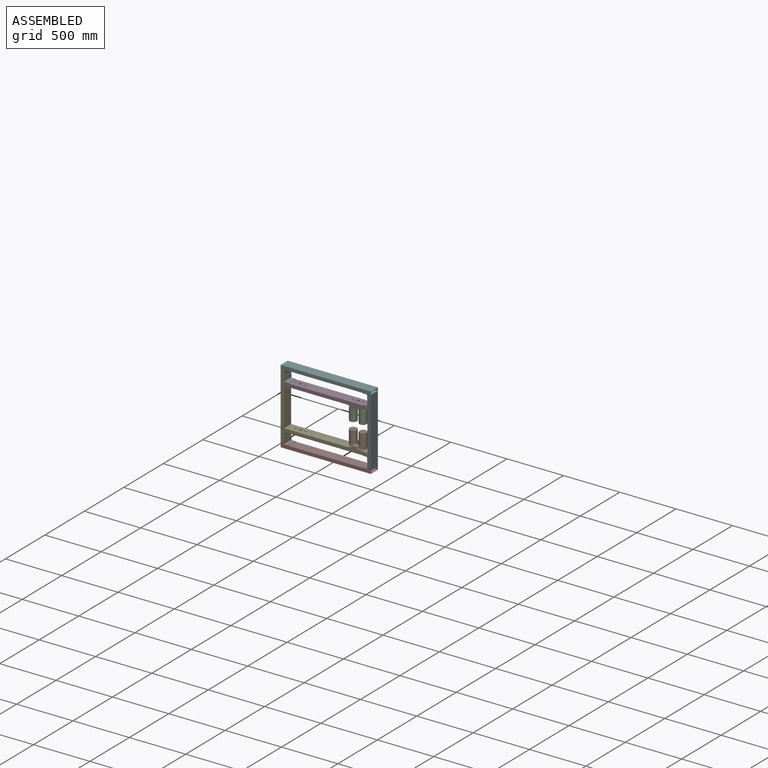
[diagram: assembled view]
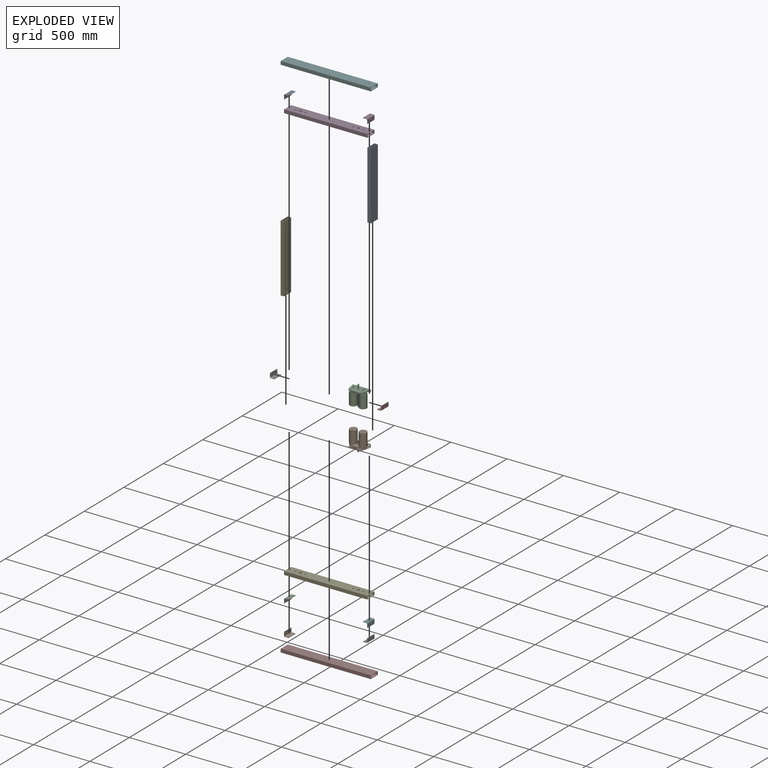
[diagram: exploded view]
GUIDED TOUR — MATED ASSEMBLY WITH SUBASSEMBLIES (Onshape document c86a4f6575f6017475b67a72, AutoMate assembly c86a4f6575f6017475b67a72_9b0eb808f1c5a23047f3c96d_129d4300e8e7a1c445e2efac_default)

This assembly has 30 component occurrences arranged in 16 top-level units: 14 individual components plus 2 subassemblies (S0, S1). The tour has two levels: first the top level, where each subassembly is treated as one rigid unit; then each subassembly is toured internally in its own section (nesting deeper than one subassembly level is flattened into its subassembly's section).

Components are labeled P0..P29 across the whole record; subassembly units are labeled S0..S1. A mate is a constraint between two units; its type names the relative motion it leaves free:
  FASTENED — locks the two components together rigidly (no relative motion).
Axis/direction vectors are unit vectors and 'through' points are millimeter coordinates, both in the assembly's world frame.

TOP-LEVEL MATES (between units; each subassembly's internal mates are listed in its own section)
  1. FASTENED "Fastened 5": P25 <-> P24, direction (0.000, 0.000, 1.000) through (-180.54, -116.82, -42.28) mm
  2. FASTENED "Fastened 12": P10 <-> P3, direction (0.000, 0.000, -1.000) through (-180.54, -116.82, 357.72) mm
  3. FASTENED "Fastened 6": P19 <-> P24, direction (0.000, 0.000, 1.000) through (-856.54, -116.82, -42.28) mm
  4. FASTENED "Fastened 4": P28 <-> P8, direction (0.000, 0.000, 1.000) through (-180.54, -116.82, -142.28) mm
  5. FASTENED "Fastened 9": P5 <-> P11, direction (0.000, 0.000, -1.000) through (-856.54, -116.82, 457.72) mm
  6. FASTENED "Fastened 7": P18 <-> P28, direction (0.000, 0.000, -1.000) through (-856.54, -116.82, -142.28) mm
  7. FASTENED "Fastened 11": S1 <-> P3, direction (0.000, 0.000, 1.000) through (-233.22, -117.31, 327.72) mm
  8. FASTENED "Fastened 13": P27 <-> P3, direction (0.000, 0.000, -1.000) through (-856.54, -116.82, 357.72) mm
  9. FASTENED "Fastened 3": P4 <-> P5, direction (0.000, 0.000, 1.000) through (-918.54, -108.82, 457.72) mm
  10. FASTENED "Fastened 8": P5 <-> P23, direction (0.000, 0.000, -1.000) through (-180.54, -116.82, 457.72) mm
  11. FASTENED "Fastened 10": P24 <-> S0, direction (0.000, 0.000, 1.000) through (-233.22, -117.31, -12.28) mm
  12. FASTENED "Fastened 1": P0 <-> P28, direction (0.000, 0.000, -1.000) through (-118.54, -108.82, -142.28) mm
  13. FASTENED "Fastened 2": P28 <-> P4, direction (0.000, 0.000, 1.000) through (-918.54, -108.82, -142.28) mm

TOP-LEVEL ASSEMBLY ORDER
  1. S0 — the base component [order heuristic]
  2. S1 — core [order heuristic]
  3. P3 — core [order heuristic]
  4. P5 [order verified]
  5. P19 [order verified]
  6. P25 [order verified]
  7. P8 [order verified]
  8. P18 [order verified]
  9. P0 [order verified]
  10. P4 [order verified]
  11. P27 [order verified]
  12. P10 [order verified]
  13. P23 [order verified]
  14. P11 [order verified]
  15. P24 — core [order heuristic]
  16. P28 [order verified]
Order-tag legend:
  [order verified] — this step's position reverses a verified removal order: the component was checked to insert without passing through the ones already placed.
  [order heuristic] — the first 4 components form the assembly's core: parts whose collision-free extraction could not be verified, listed in mate-graph order.

Of the 30 component occurrences, 8 carry the full construction recipe — the FeatureScript program that regenerates the part's solid from scratch; the rest are supplied as boundary geometry only. Each toured unit is shown spotlighted twice — assembled, then exploded with a leader line back to its socket (green = recipe-attached component, orange = geometry-only, blue = subassembly unit; the rest desaturated gray).
NOTE — document 2 of 3 of this assembly tour. The two overview renders and the header above are repeated from document 1; the component sections below continue where the previous document stopped.
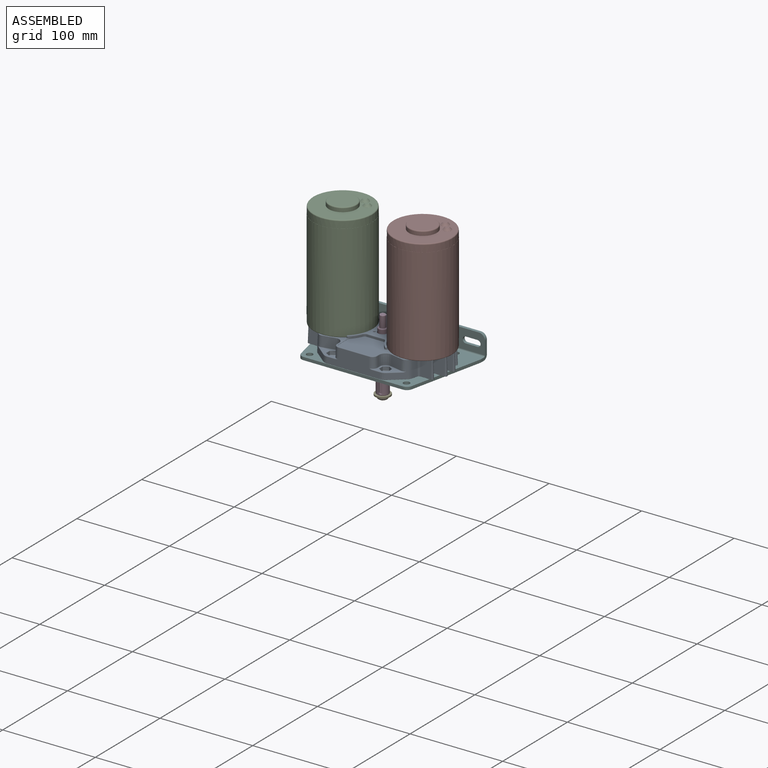
[diagram: subassembly S0 — assembled view]
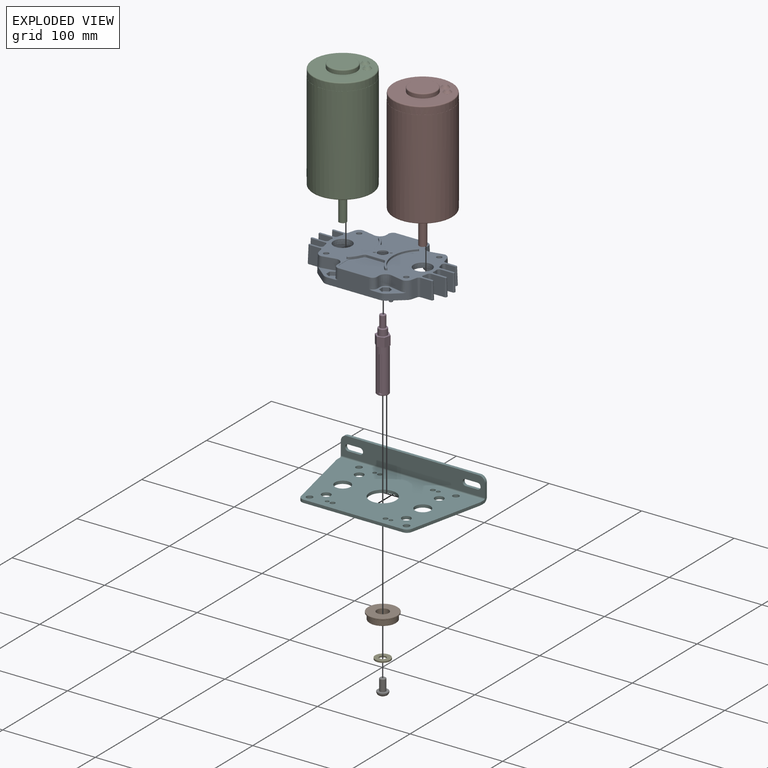
[diagram: subassembly S0 — exploded view]
SUBASSEMBLY S0 TOUR — 8 components, shown here in isolation at its own camera.

INTERNAL MATES
  1. FASTENED "Fastened 1": P22 <-> P1, direction (0.000, 0.000, -1.000) through (-218.54, -179.22, 9.94) mm
  2. FASTENED "Fastened 6": P1 <-> P13, direction (0.000, 0.000, -1.000) through (-261.80, -153.82, 9.87) mm
  3. FASTENED "Fastened 2": P9 <-> P1, direction (0.000, 0.000, -1.000) through (-305.05, -179.22, 9.94) mm
  4. FASTENED "Fastened 7": P1 <-> P16, direction (0.000, 0.000, -1.000) through (-290.37, -190.34, -9.11) mm
  5. FASTENED "Fastened 3": P6 <-> P16, direction (0.000, 0.000, -1.000) through (-261.80, -153.82, -9.11) mm
  6. FASTENED "Fastened 4": P15 <-> P13, direction (0.000, 0.000, 1.000) through (-261.80, -153.82, -47.54) mm
  7. FASTENED "Fastened 5": P15 <-> P20, direction (0.000, 0.000, -1.000) through (-261.80, -153.82, -49.11) mm
  8. FASTENED "Fastened 1": P22 <-> P1, direction (0.000, 0.000, -1.000) through (-218.54, -179.22, 9.94) mm
  9. FASTENED "Fastened 3": P6 <-> P16, direction (0.000, 0.000, -1.000) through (-261.80, -153.82, -9.11) mm
  10. FASTENED "Fastened 2": P9 <-> P1, direction (0.000, 0.000, -1.000) through (-305.05, -179.22, 9.94) mm
  11. FASTENED "Fastened 7": P1 <-> P16, direction (0.000, 0.000, -1.000) through (-290.37, -190.34, -9.11) mm
  12. FASTENED "Fastened 4": P15 <-> P13, direction (0.000, 0.000, 1.000) through (-261.80, -153.82, -47.54) mm
  13. FASTENED "Fastened 5": P15 <-> P20, direction (0.000, 0.000, -1.000) through (-261.80, -153.82, -49.11) mm
  14. FASTENED "Fastened 6": P1 <-> P13, direction (0.000, 0.000, -1.000) through (-261.80, -153.82, 9.87) mm

ASSEMBLY ORDER (within the subassembly)
  1. P13 — the base component [order verified]
  2. P6 [order verified]
  3. P16 [order verified]
  4. P1 [order verified]
  5. P22 [order verified]
  6. P9 [order verified]
  7. P20 [order verified]
  8. P15 [order verified]
(P1, P9, P22 verified with a relaxed clearance tolerance: the source model stores slight part interference there.)
Order-tag legend:
  [order verified] — this step's position reverses a verified removal order: the component was checked to insert without passing through the ones already placed.
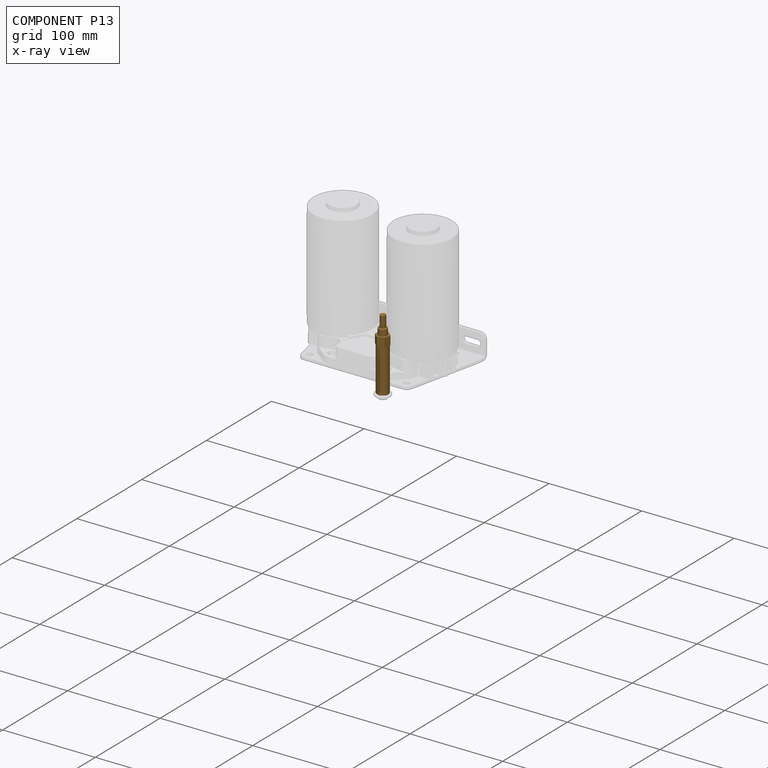
[diagram: component P13 — x-ray view]
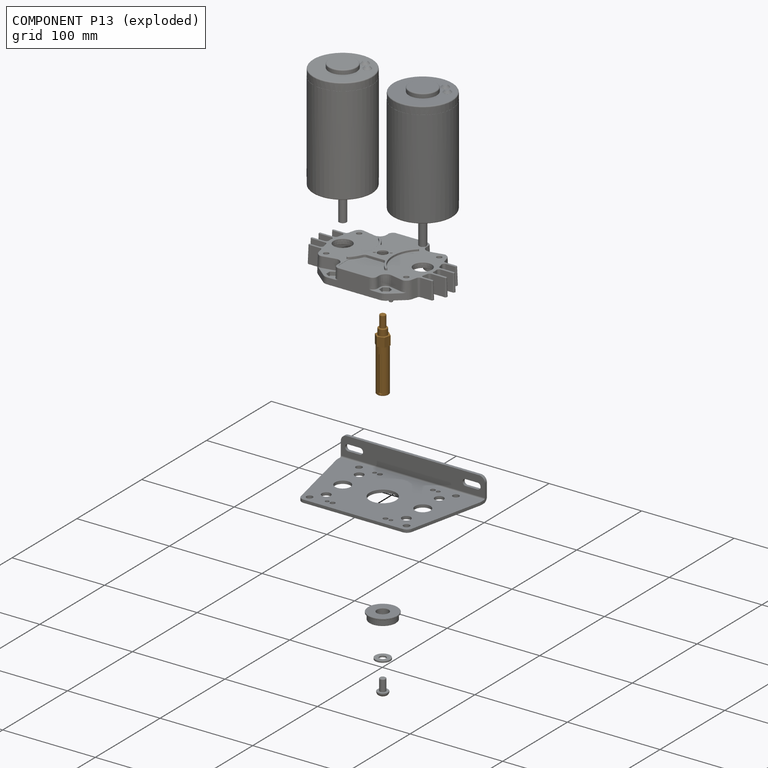
[diagram: component P13 — exploded]
COMPONENT P13 — geometry summary (no construction recipe available for this part):
  bounding box: 77.2 x 14.3 x 14.0 mm
  B-rep topology: 1 solid, 24 faces, 105 edges
  volume: 7759 mm^3 (50% of its bounding box)
Held by: FASTENED mate "Fastened 6" to P1; FASTENED mate "Fastened 4" to P15; FASTENED mate "Fastened 4" to P15; FASTENED mate "Fastened 6" to P1.
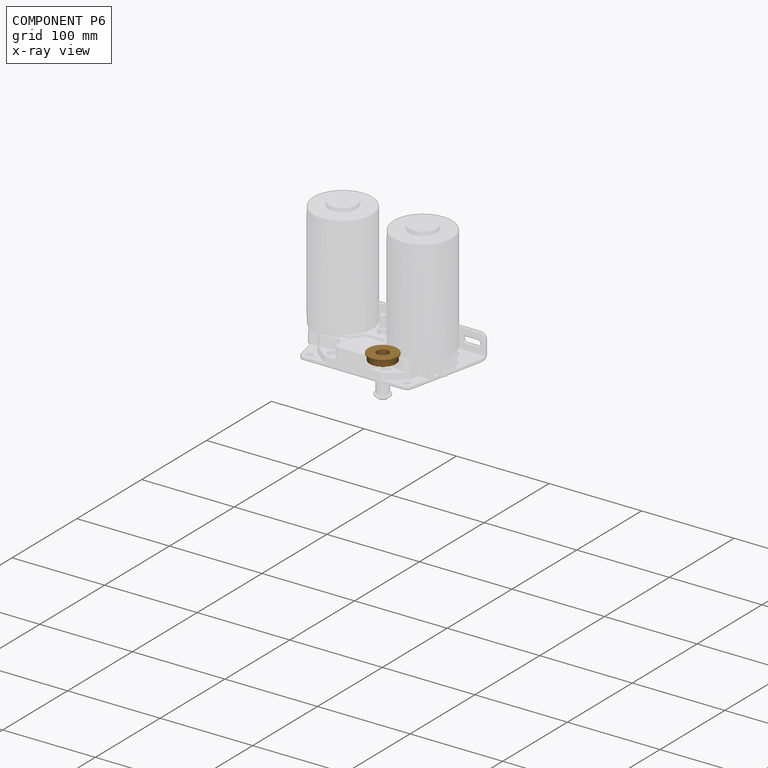
[diagram: component P6 — x-ray view]
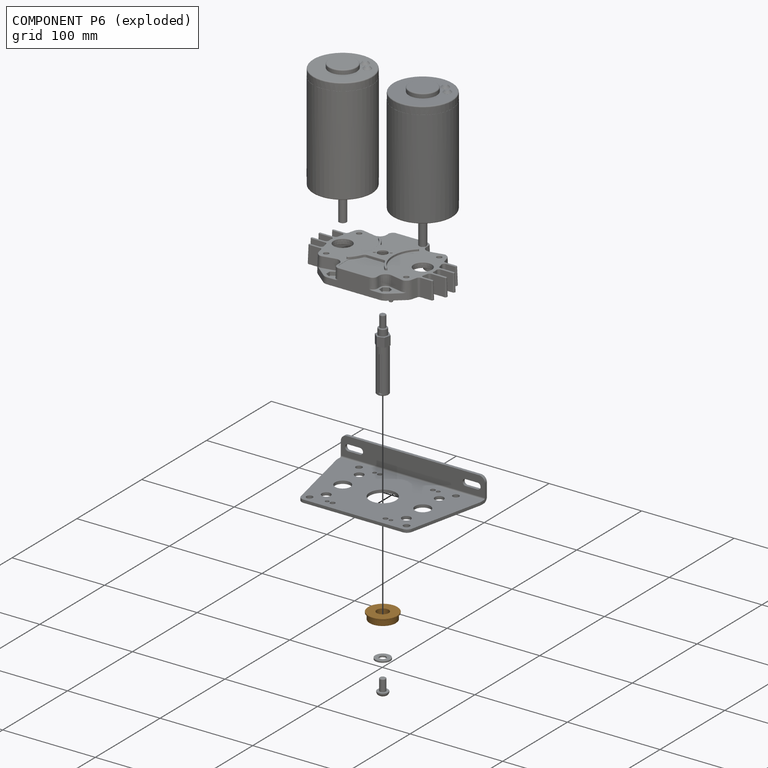
[diagram: component P6 — exploded]
COMPONENT P6 — geometry summary (no construction recipe available for this part):
  bounding box: 31.8 x 31.8 x 8.0 mm
  B-rep topology: 1 solid, 11 faces, 40 edges
  volume: 4316 mm^3 (54% of its bounding box)
  symmetry: revolution-symmetric about the z axis through its bounding-box center; mirror-symmetric across its x mid-plane, y mid-plane
Held by: FASTENED mate "Fastened 3" to P16; FASTENED mate "Fastened 3" to P16.
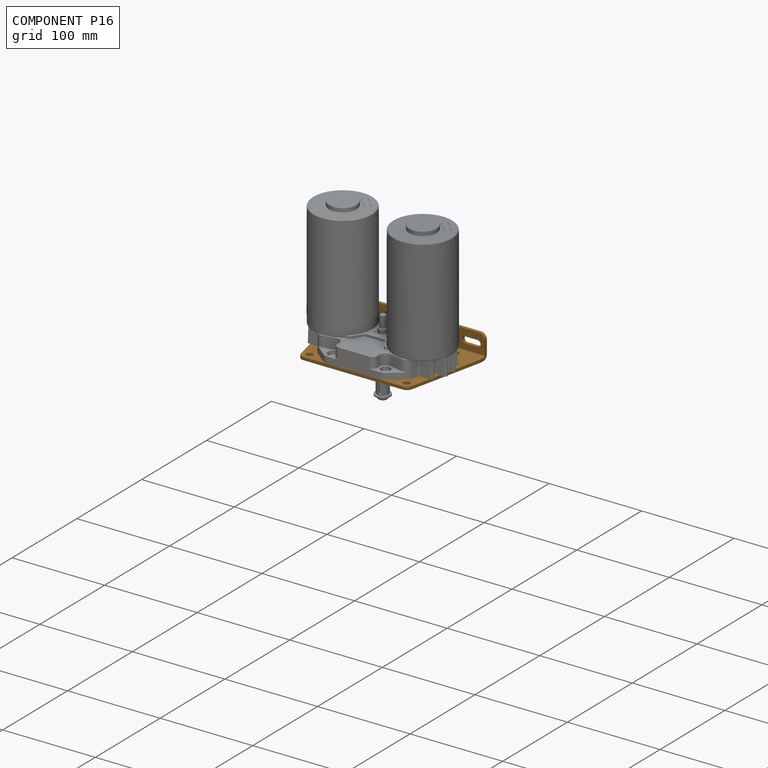
[diagram: component P16 — assembled]
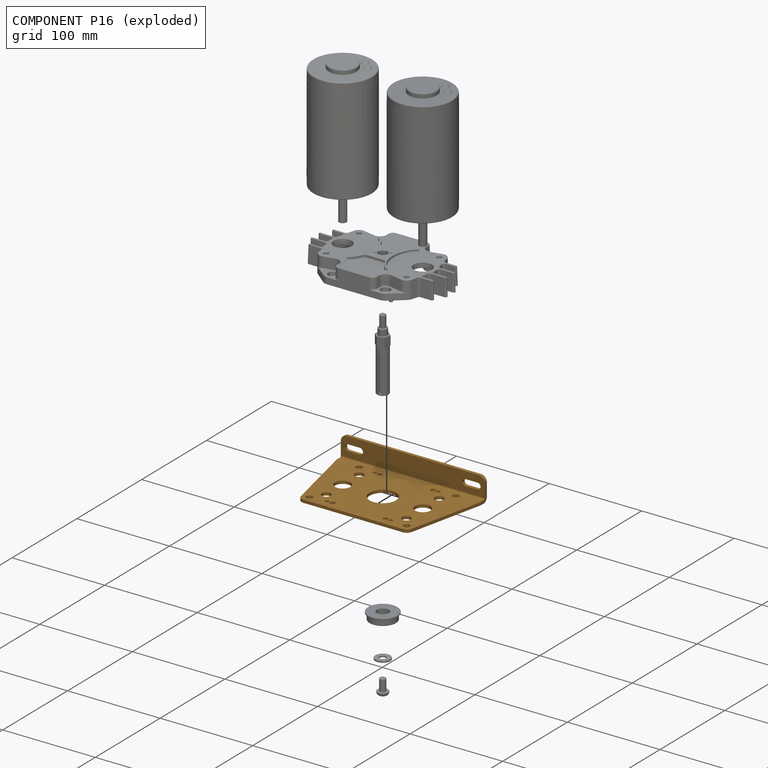
[diagram: component P16 — exploded]
COMPONENT P16 — geometry summary (no construction recipe available for this part):
  bounding box: 155.6 x 95.3 x 25.4 mm
  B-rep topology: 1 solid, 43 faces, 276 edges
  volume: 46131 mm^3 (12% of its bounding box)
  symmetry: mirror-symmetric across its x mid-plane
Held by: FASTENED mate "Fastened 7" to P1; FASTENED mate "Fastened 3" to P6; FASTENED mate "Fastened 3" to P6; FASTENED mate "Fastened 7" to P1.
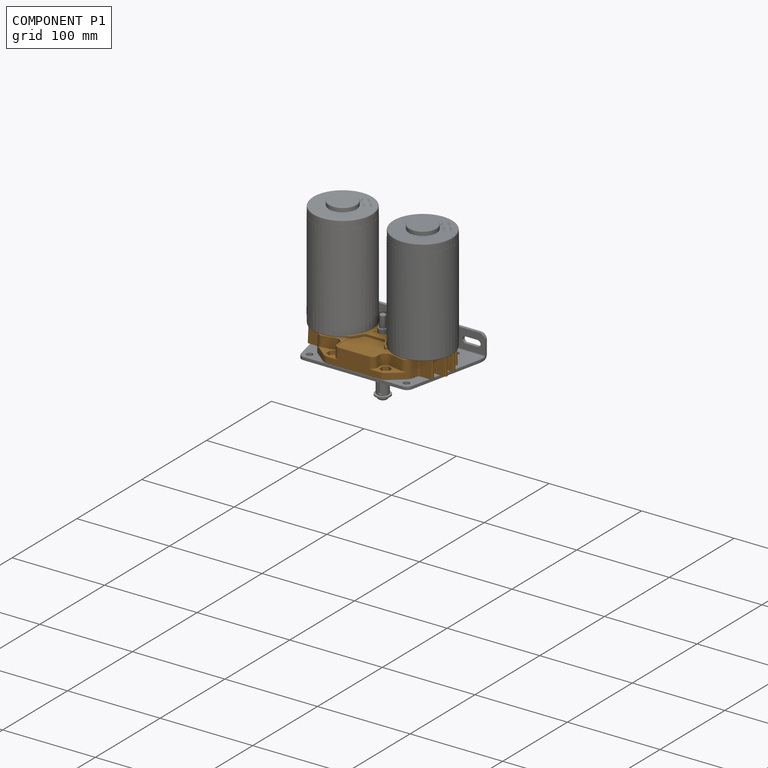
[diagram: component P1 — assembled]
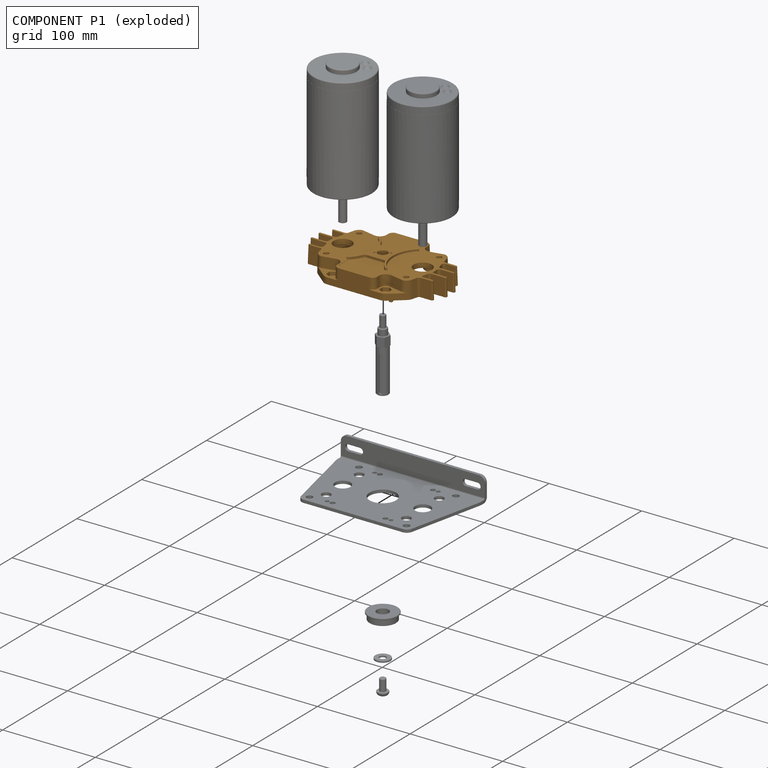
[diagram: component P1 — exploded]
COMPONENT P1 — geometry summary (no construction recipe available for this part):
  bounding box: 148.4 x 93.3 x 25.2 mm
  B-rep topology: 1 solid, 1020 faces, 4786 edges
  volume: 52668 mm^3 (15% of its bounding box)
  symmetry: 2-fold rotationally symmetric about the z axis; mirror-symmetric across its x mid-plane, y mid-plane
Held by: FASTENED mate "Fastened 1" to P22; FASTENED mate "Fastened 6" to P13; FASTENED mate "Fastened 2" to P9; FASTENED mate "Fastened 7" to P16; FASTENED mate "Fastened 1" to P22; FASTENED mate "Fastened 2" to P9; FASTENED mate "Fastened 7" to P16; FASTENED mate "Fastened 6" to P13.
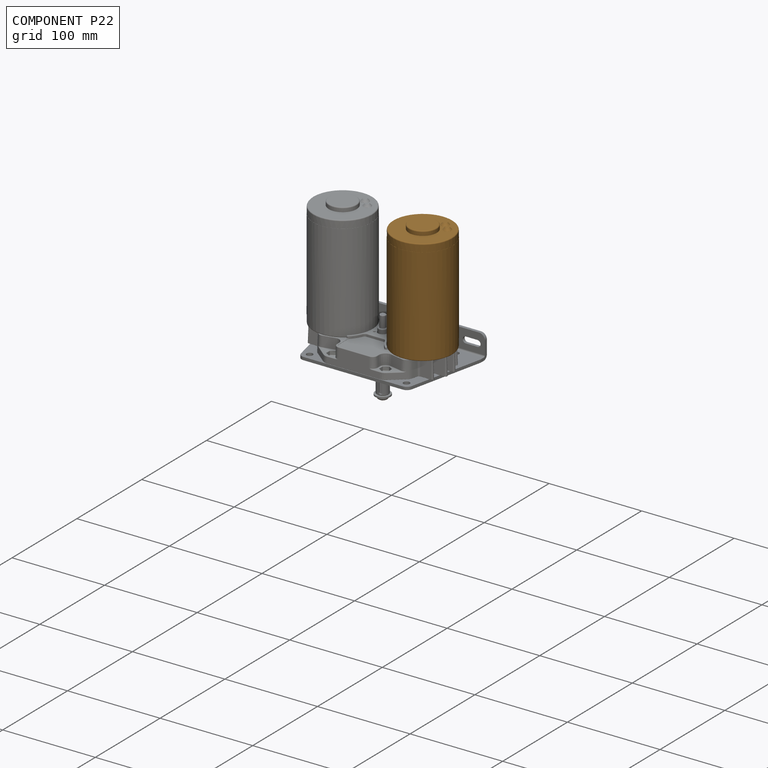
[diagram: component P22 — assembled]
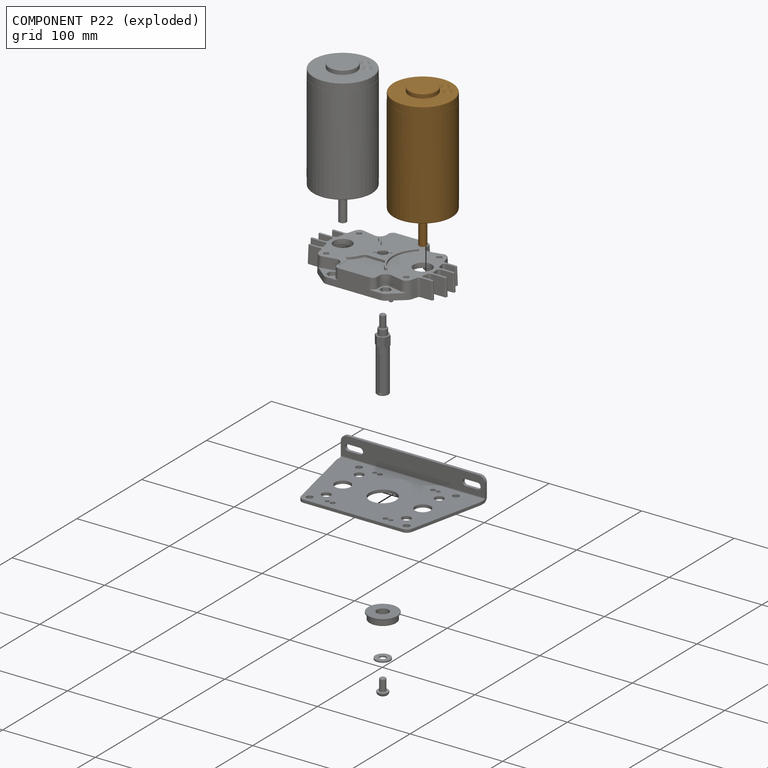
[diagram: component P22 — exploded]
COMPONENT P22 — geometry summary (no construction recipe available for this part):
  bounding box: 155.0 x 69.0 x 69.0 mm
  B-rep topology: 1 solid, 34 faces, 146 edges
  volume: 374044 mm^3 (51% of its bounding box)
Held by: FASTENED mate "Fastened 1" to P1; FASTENED mate "Fastened 1" to P1.
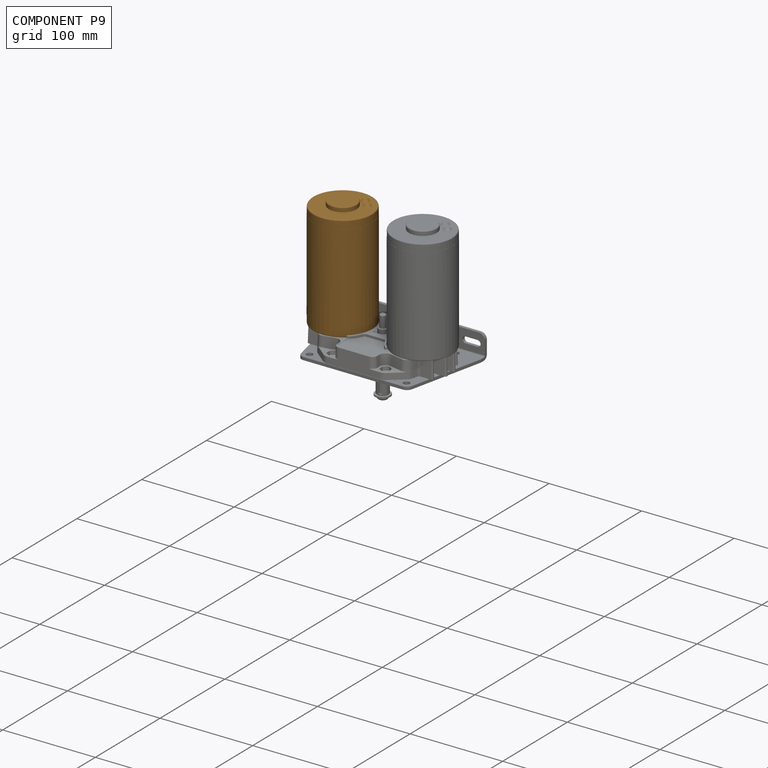
[diagram: component P9 — assembled]
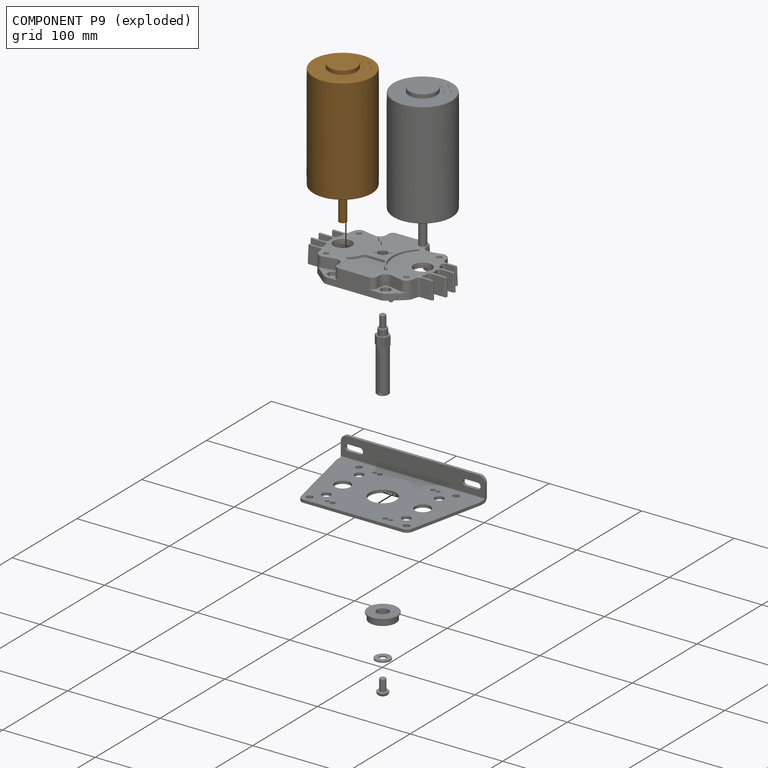
[diagram: component P9 — exploded]
COMPONENT P9 — geometry summary (no construction recipe available for this part):
  bounding box: 155.0 x 69.0 x 69.0 mm
  B-rep topology: 1 solid, 34 faces, 146 edges
  volume: 374044 mm^3 (51% of its bounding box)
Held by: FASTENED mate "Fastened 2" to P1; FASTENED mate "Fastened 2" to P1.
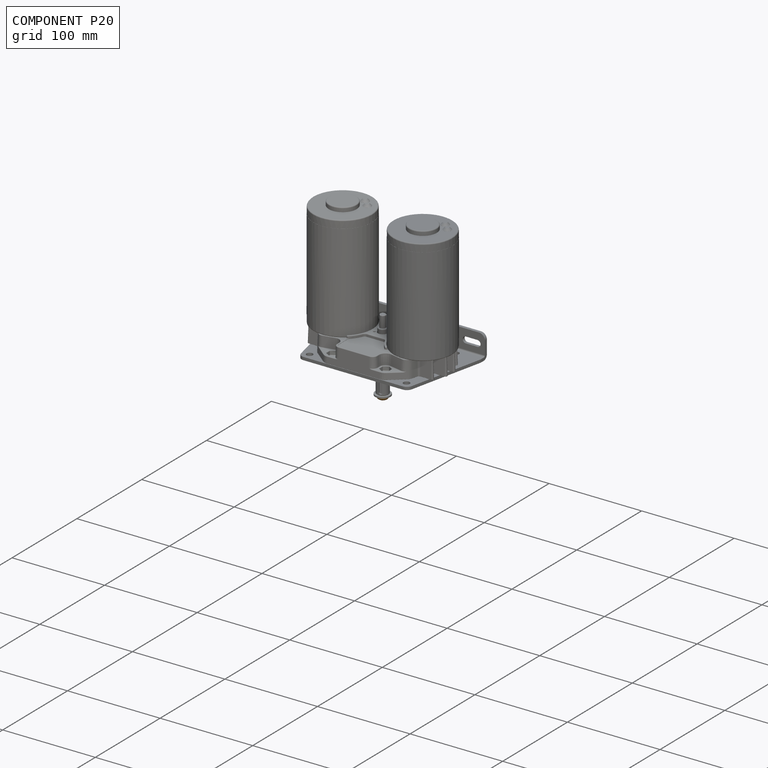
[diagram: component P20 — assembled]
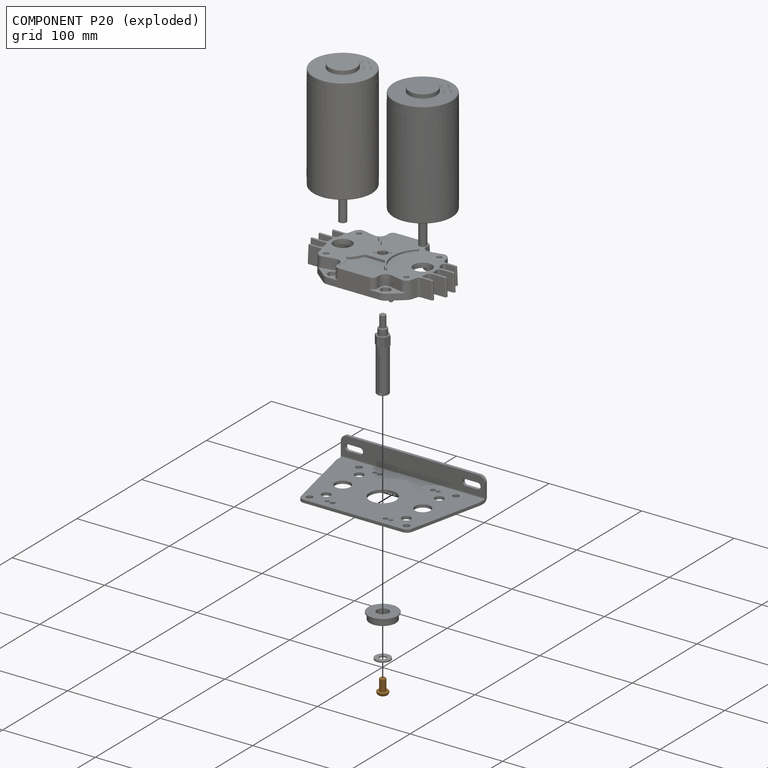
[diagram: component P20 — exploded]
COMPONENT P20 — geometry summary (no construction recipe available for this part):
  bounding box: 16.8 x 11.7 x 11.7 mm
  B-rep topology: 1 solid, 25 faces, 118 edges
  volume: 708 mm^3 (31% of its bounding box)
  symmetry: 6-fold rotationally symmetric about the z axis
Held by: FASTENED mate "Fastened 5" to P15; FASTENED mate "Fastened 5" to P15.
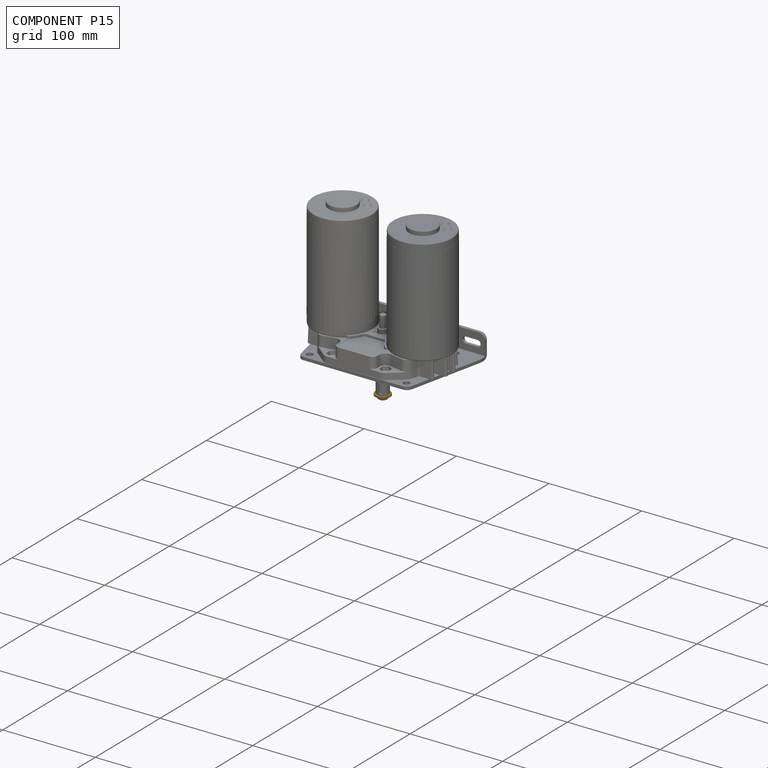
[diagram: component P15 — assembled]
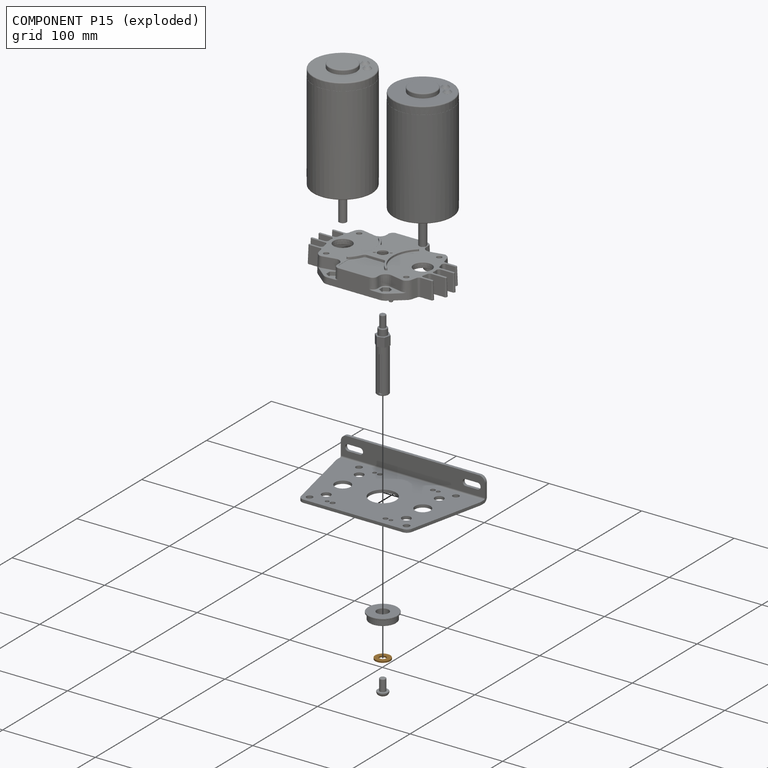
[diagram: component P15 — exploded]
COMPONENT P15 — geometry summary (no construction recipe available for this part):
  bounding box: 16.3 x 16.3 x 1.6 mm
  B-rep topology: 1 solid, 4 faces, 12 edges
  volume: 264 mm^3 (64% of its bounding box)
  symmetry: 2-fold rotationally symmetric about the x axis; 2-fold rotationally symmetric about the y axis; revolution-symmetric about the z axis through its bounding-box center; mirror-symmetric across its x mid-plane, y mid-plane, z mid-plane
Held by: FASTENED mate "Fastened 4" to P13; FASTENED mate "Fastened 5" to P20; FASTENED mate "Fastened 4" to P13; FASTENED mate "Fastened 5" to P20.
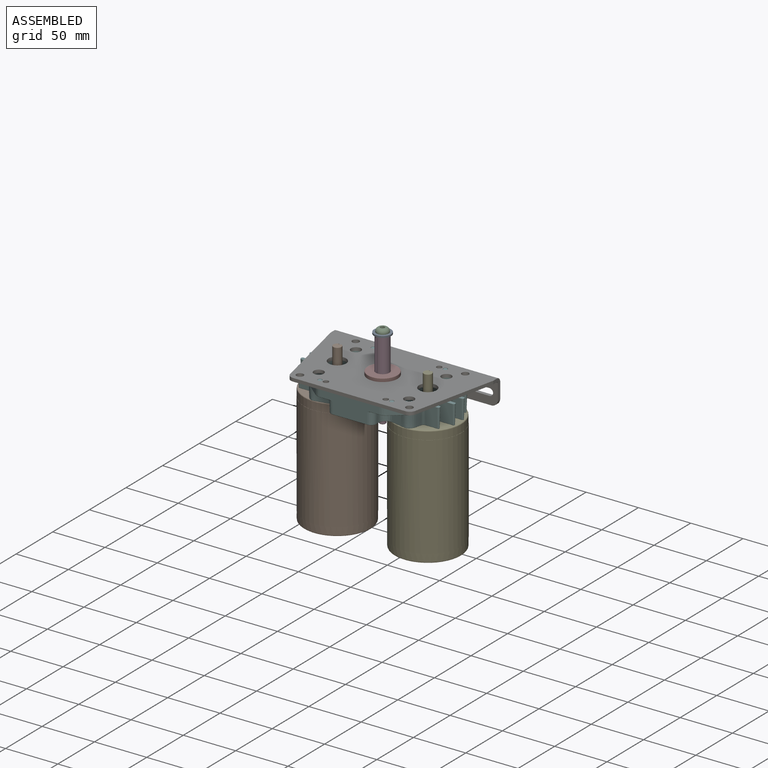
[diagram: subassembly S1 — assembled view]
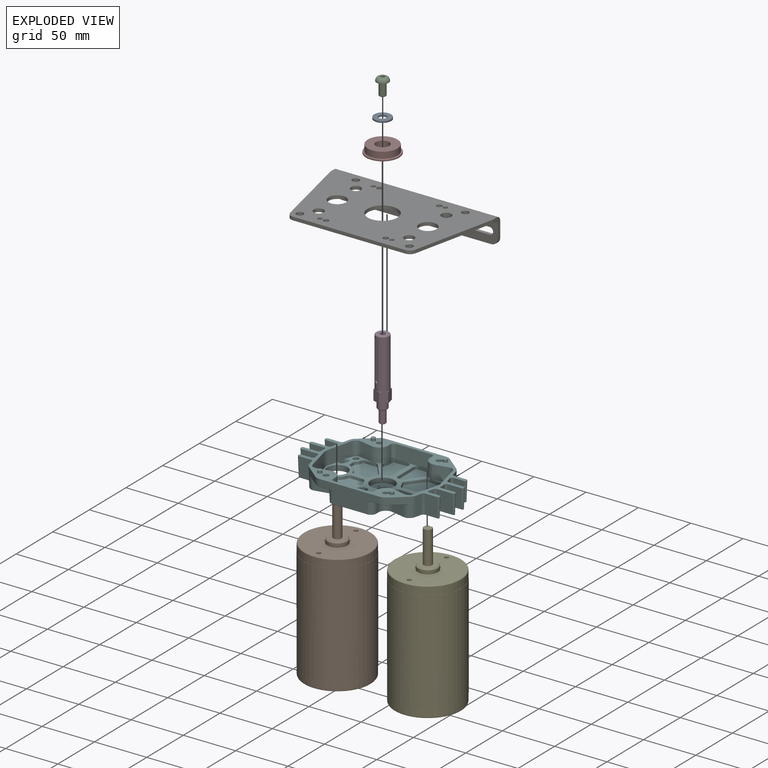
[diagram: subassembly S1 — exploded view]
SUBASSEMBLY S1 TOUR — 8 components, shown here in isolation at its own camera.

INTERNAL MATES
  1. FASTENED "Fastened 1": P7 <-> P21, direction (0.000, 0.000, 1.000) through (-305.05, -179.22, 305.49) mm
  2. FASTENED "Fastened 6": P21 <-> P14, direction (0.000, 0.000, 1.000) through (-261.80, -153.82, 305.57) mm
  3. FASTENED "Fastened 2": P17 <-> P21, direction (0.000, 0.000, 1.000) through (-218.54, -179.22, 305.49) mm
  4. FASTENED "Fastened 7": P21 <-> P26, direction (0.000, 0.000, 1.000) through (-233.22, -190.34, 324.54) mm
  5. FASTENED "Fastened 3": P29 <-> P26, direction (0.000, 0.000, 1.000) through (-261.80, -153.82, 324.54) mm
  6. FASTENED "Fastened 4": P2 <-> P14, direction (0.000, 0.000, -1.000) through (-261.80, -153.82, 362.97) mm
  7. FASTENED "Fastened 5": P2 <-> P12, direction (0.000, 0.000, 1.000) through (-261.80, -153.82, 364.55) mm
  8. FASTENED "Fastened 7": P21 <-> P26, direction (0.000, 0.000, 1.000) through (-233.22, -190.34, 324.54) mm
  9. FASTENED "Fastened 2": P17 <-> P21, direction (0.000, 0.000, 1.000) through (-218.54, -179.22, 305.49) mm
  10. FASTENED "Fastened 6": P21 <-> P14, direction (0.000, 0.000, 1.000) through (-261.80, -153.82, 305.57) mm
  11. FASTENED "Fastened 1": P7 <-> P21, direction (0.000, 0.000, 1.000) through (-305.05, -179.22, 305.49) mm
  12. FASTENED "Fastened 4": P2 <-> P14, direction (0.000, 0.000, -1.000) through (-261.80, -153.82, 362.97) mm
  13. FASTENED "Fastened 3": P29 <-> P26, direction (0.000, 0.000, 1.000) through (-261.80, -153.82, 324.54) mm
  14. FASTENED "Fastened 5": P2 <-> P12, direction (0.000, 0.000, 1.000) through (-261.80, -153.82, 364.55) mm

ASSEMBLY ORDER (within the subassembly)
  1. P14 — the base component [order verified]
  2. P29 [order verified]
  3. P26 [order verified]
  4. P21 [order verified]
  5. P17 [order verified]
  6. P7 [order verified]
  7. P12 [order verified]
  8. P2 [order verified]
(P7, P17, P21 verified with a relaxed clearance tolerance: the source model stores slight part interference there.)
Order-tag legend:
  [order verified] — this step's position reverses a verified removal order: the component was checked to insert without passing through the ones already placed.
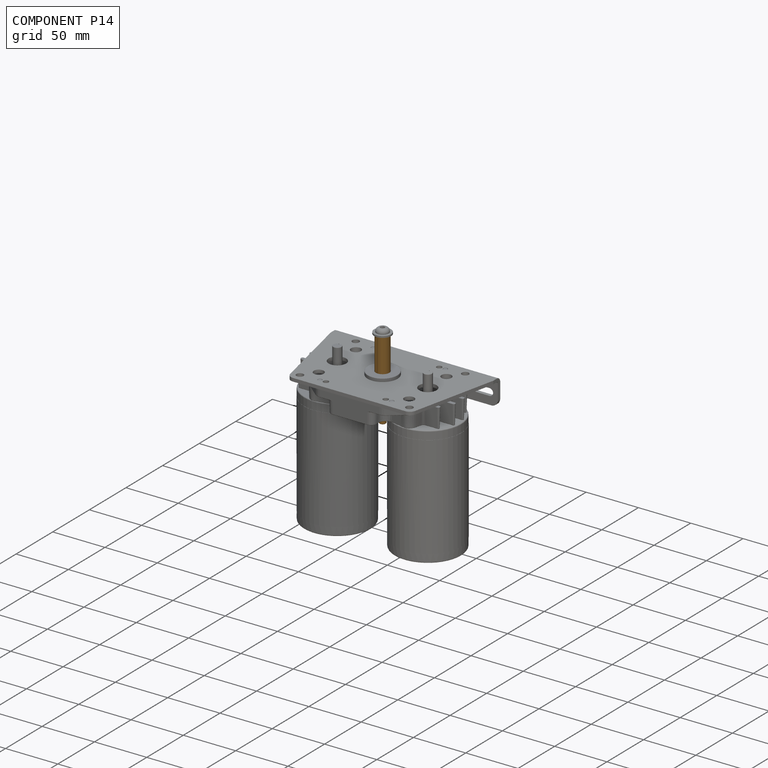
[diagram: component P14 — assembled]
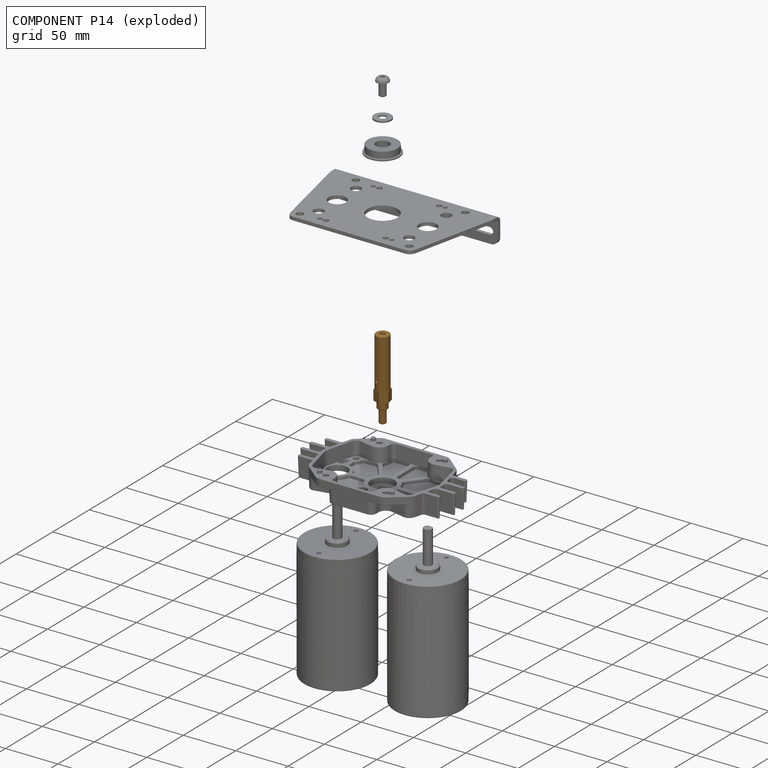
[diagram: component P14 — exploded]
COMPONENT P14 — geometry summary (no construction recipe available for this part):
  bounding box: 77.2 x 14.3 x 14.0 mm
  B-rep topology: 1 solid, 24 faces, 105 edges
  volume: 7759 mm^3 (50% of its bounding box)
Held by: FASTENED mate "Fastened 6" to P21; FASTENED mate "Fastened 4" to P2; FASTENED mate "Fastened 6" to P21; FASTENED mate "Fastened 4" to P2.
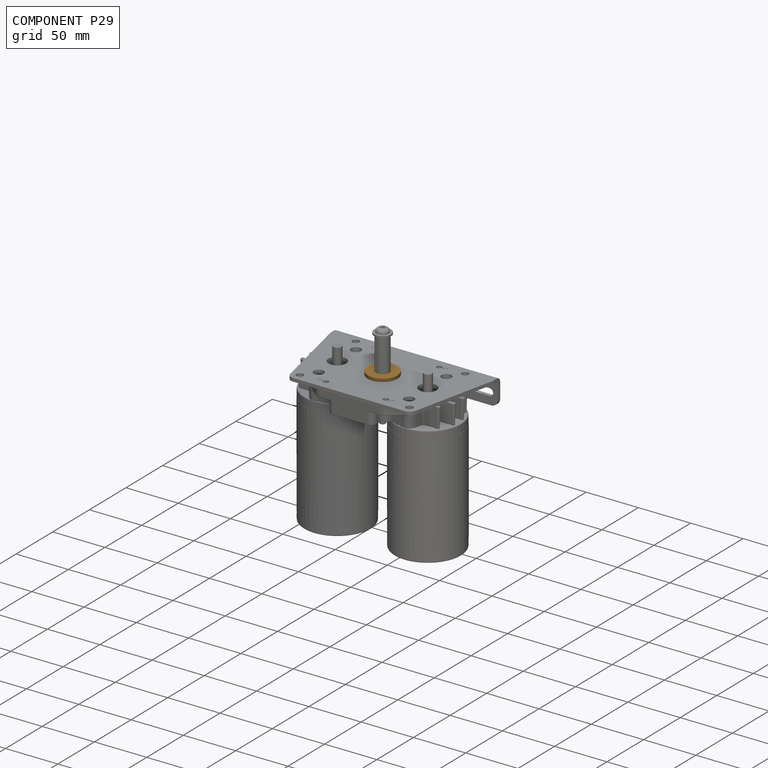
[diagram: component P29 — assembled]
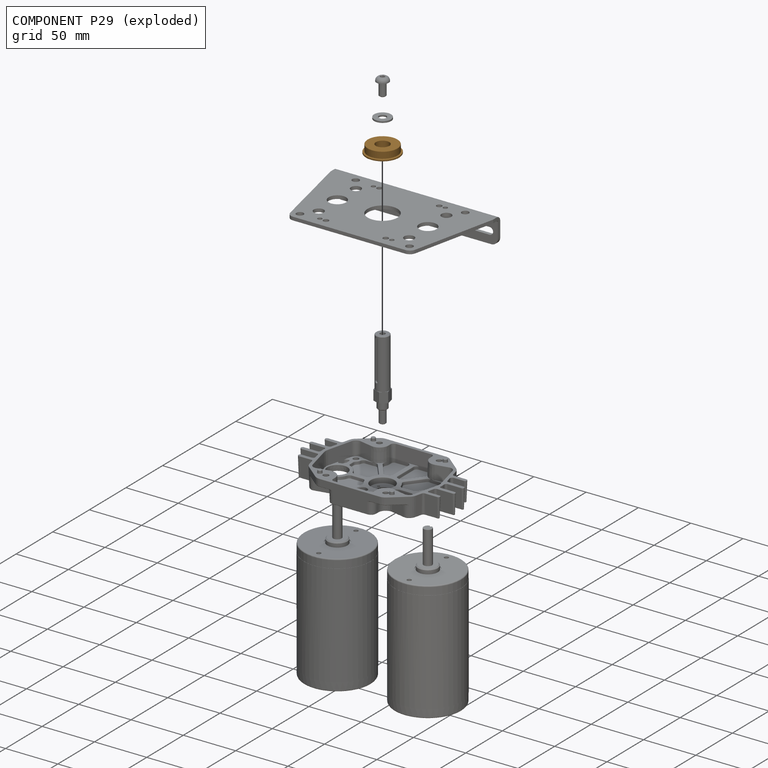
[diagram: component P29 — exploded]
COMPONENT P29 — geometry summary (no construction recipe available for this part):
  bounding box: 31.8 x 31.8 x 8.0 mm
  B-rep topology: 1 solid, 11 faces, 40 edges
  volume: 4316 mm^3 (54% of its bounding box)
  symmetry: revolution-symmetric about the z axis through its bounding-box center; mirror-symmetric across its x mid-plane, y mid-plane
Held by: FASTENED mate "Fastened 3" to P26; FASTENED mate "Fastened 3" to P26.
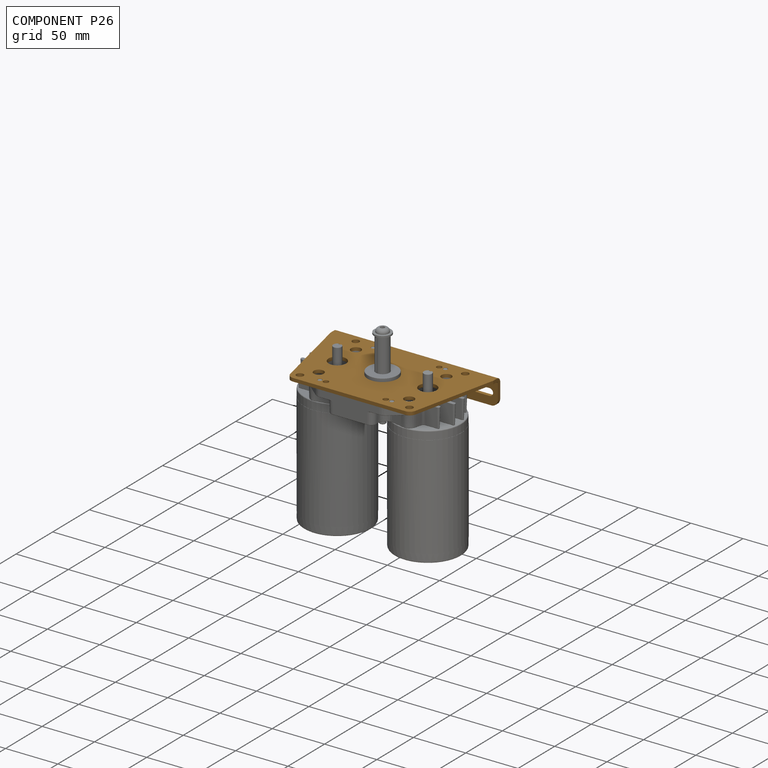
[diagram: component P26 — assembled]
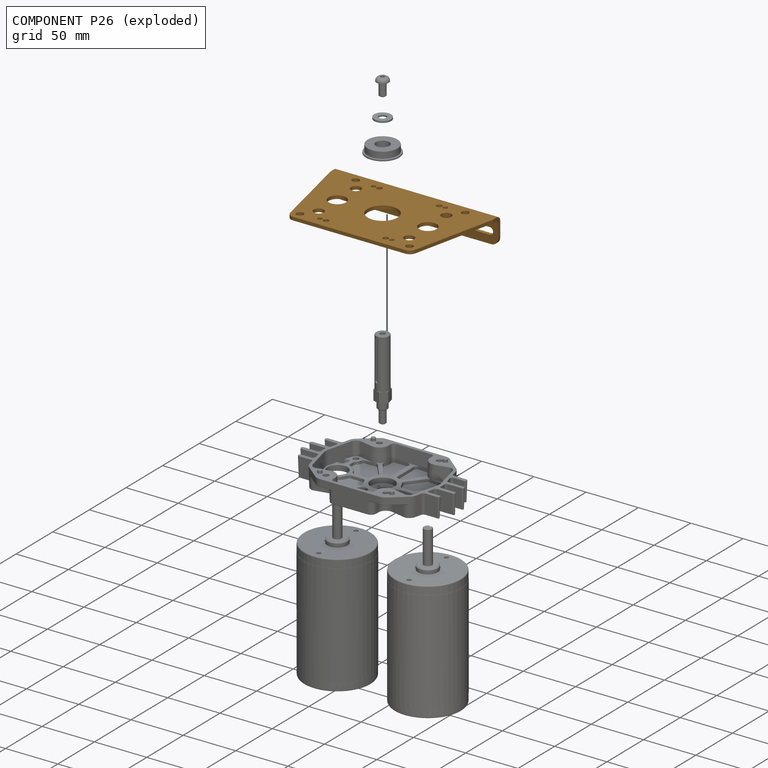
[diagram: component P26 — exploded]
COMPONENT P26 — geometry summary (no construction recipe available for this part):
  bounding box: 155.6 x 95.3 x 25.4 mm
  B-rep topology: 1 solid, 43 faces, 276 edges
  volume: 46131 mm^3 (12% of its bounding box)
  symmetry: mirror-symmetric across its x mid-plane
Held by: FASTENED mate "Fastened 7" to P21; FASTENED mate "Fastened 3" to P29; FASTENED mate "Fastened 7" to P21; FASTENED mate "Fastened 3" to P29.
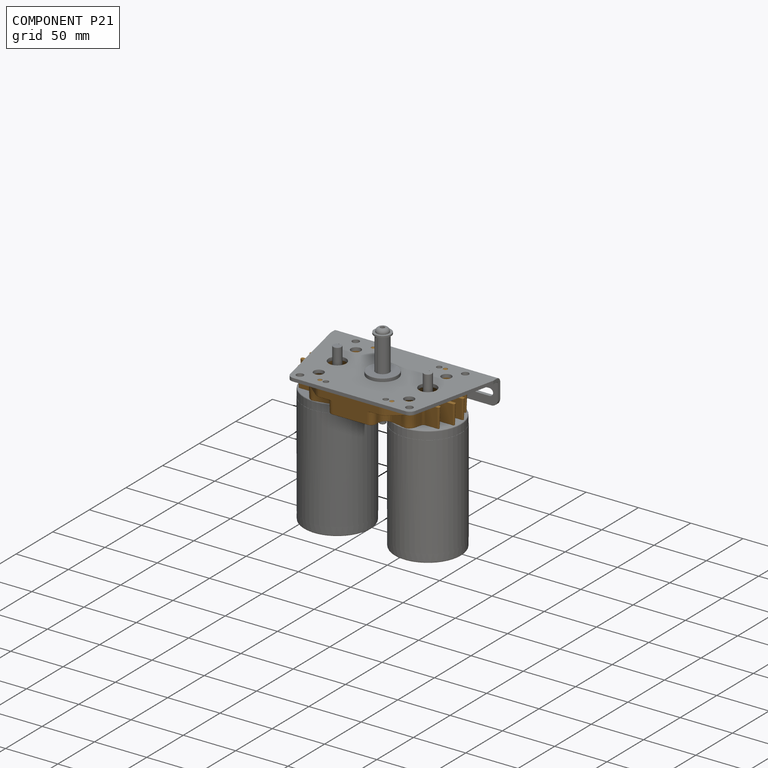
[diagram: component P21 — assembled]
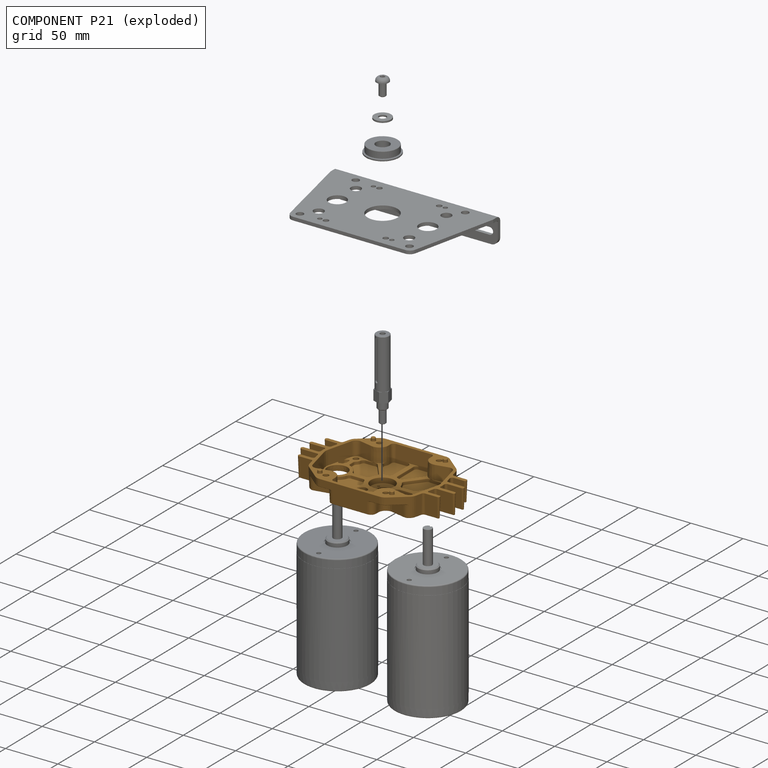
[diagram: component P21 — exploded]
COMPONENT P21 — geometry summary (no construction recipe available for this part):
  bounding box: 148.4 x 93.3 x 25.2 mm
  B-rep topology: 1 solid, 1020 faces, 4786 edges
  volume: 52668 mm^3 (15% of its bounding box)
  symmetry: 2-fold rotationally symmetric about the z axis; mirror-symmetric across its x mid-plane, y mid-plane
Held by: FASTENED mate "Fastened 1" to P7; FASTENED mate "Fastened 6" to P14; FASTENED mate "Fastened 2" to P17; FASTENED mate "Fastened 7" to P26; FASTENED mate "Fastened 7" to P26; FASTENED mate "Fastened 2" to P17; FASTENED mate "Fastened 6" to P14; FASTENED mate "Fastened 1" to P7.
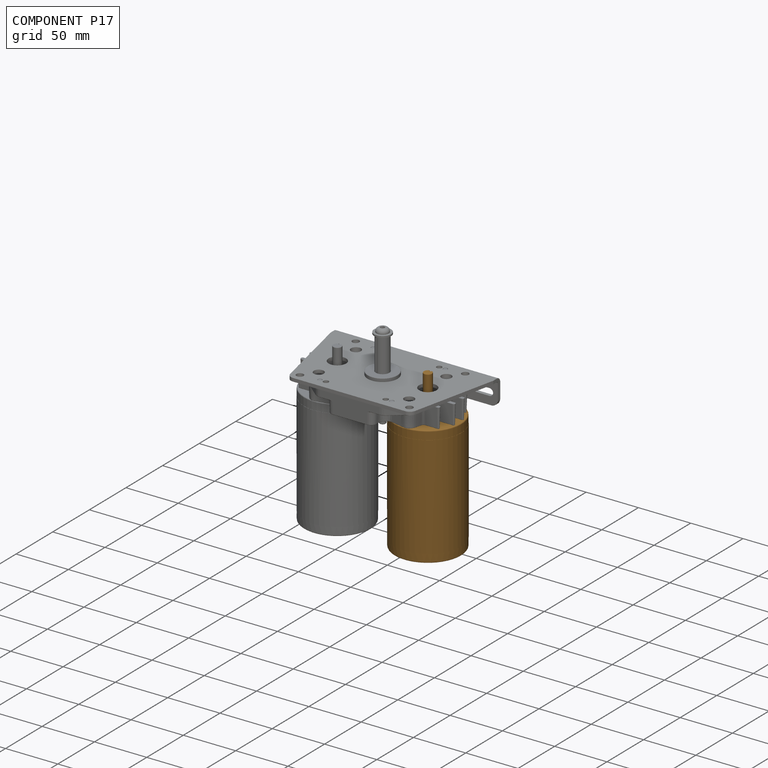
[diagram: component P17 — assembled]
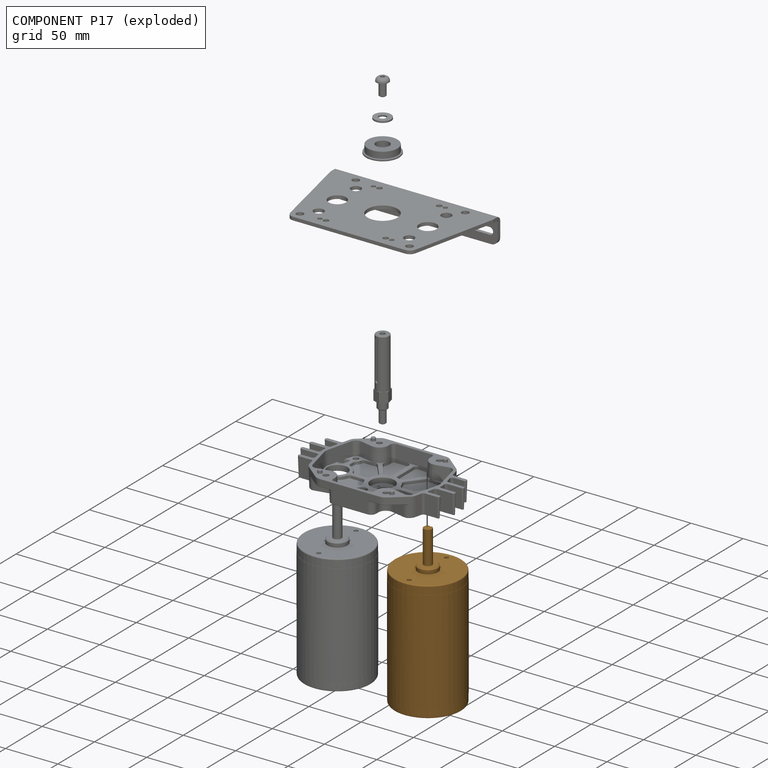
[diagram: component P17 — exploded]
COMPONENT P17 — geometry summary (no construction recipe available for this part):
  bounding box: 155.0 x 69.0 x 69.0 mm
  B-rep topology: 1 solid, 34 faces, 146 edges
  volume: 374044 mm^3 (51% of its bounding box)
Held by: FASTENED mate "Fastened 2" to P21; FASTENED mate "Fastened 2" to P21.
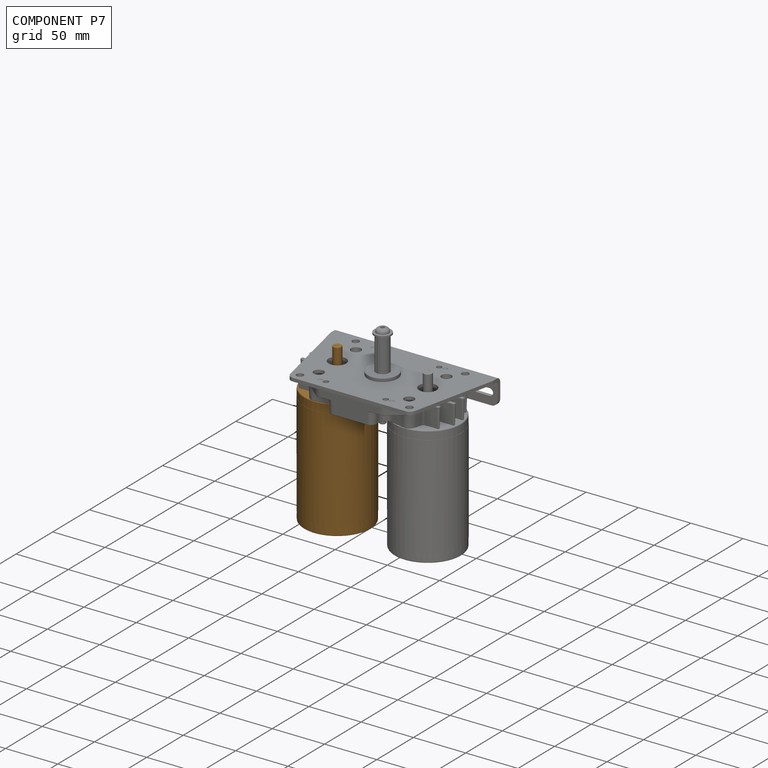
[diagram: component P7 — assembled]
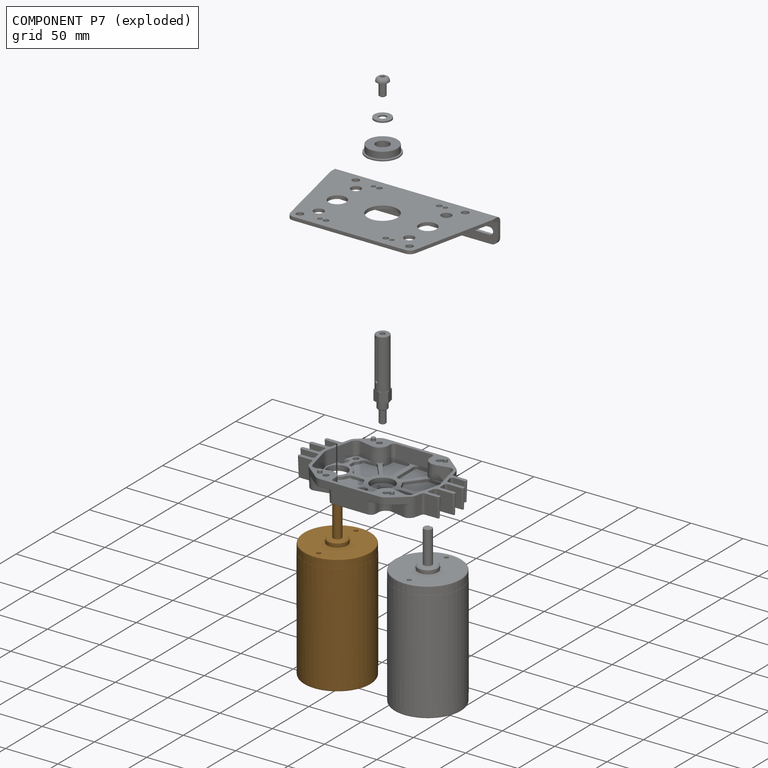
[diagram: component P7 — exploded]
COMPONENT P7 — geometry summary (no construction recipe available for this part):
  bounding box: 155.0 x 69.0 x 69.0 mm
  B-rep topology: 1 solid, 34 faces, 146 edges
  volume: 374044 mm^3 (51% of its bounding box)
Held by: FASTENED mate "Fastened 1" to P21; FASTENED mate "Fastened 1" to P21.
